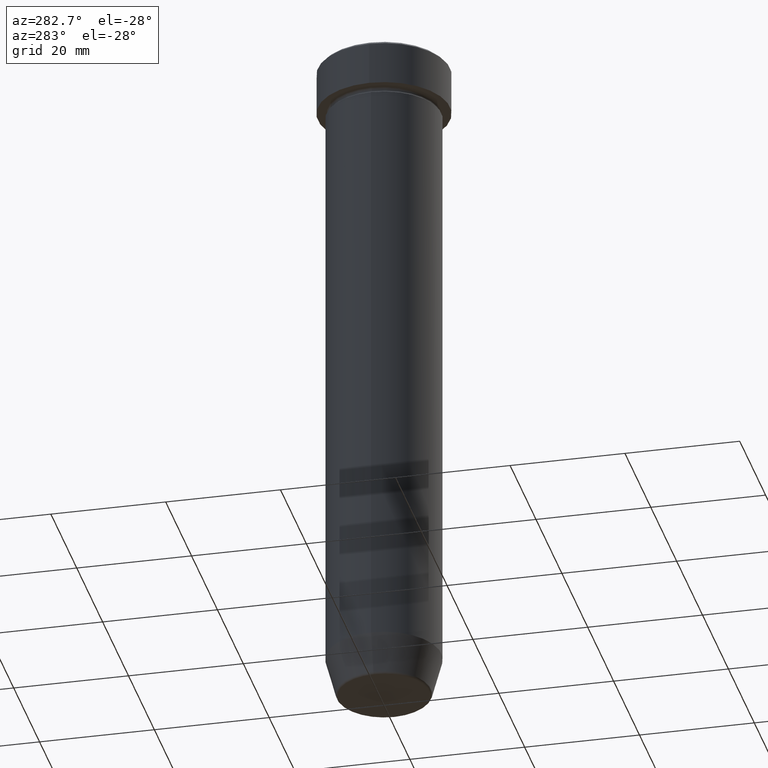
[diagram: clean part render]
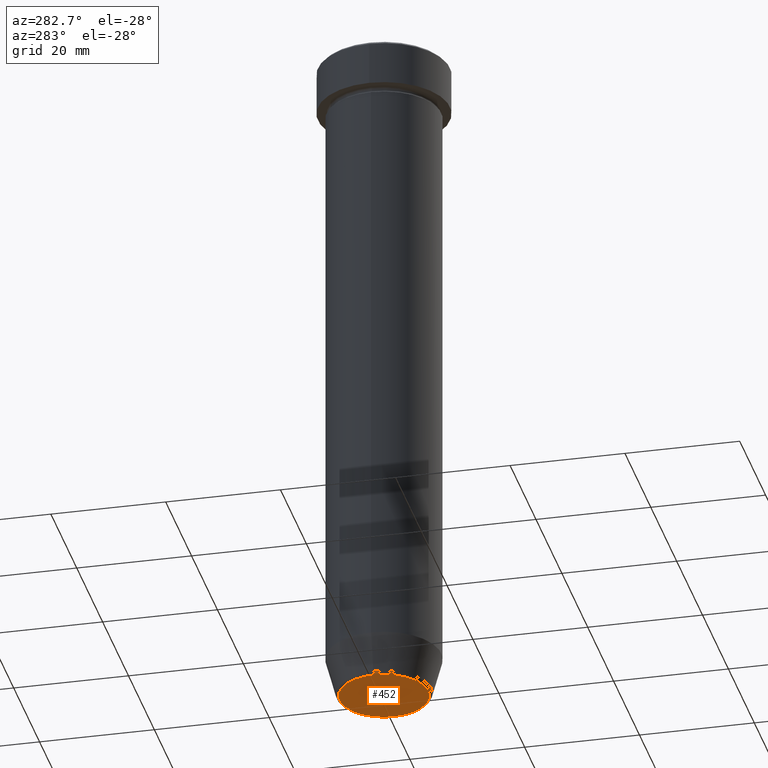
[diagram: same view with one face highlighted and labeled with its STEP entity id]
A machine part, auxiliary view. The second image highlights one B-rep face of the part: STEP entity #452.
In plain terms, the highlighted planar face has unit normal (0, -0, 1).
Its self-contained STEP definition (entity closure, byte-faithful):
#19 = DIRECTION ( 'NONE',  ( 1.000000000000000000, 0.000000000000000000, 0.000000000000000000 ) ) ;
#58 = DIRECTION ( 'NONE',  ( 0.000000000000000000, -0.000000000000000000, 1.000000000000000000 ) ) ;
#91 = CIRCLE ( 'NONE', #226, 7.740692158992650285 ) ;
#92 = ORIENTED_EDGE ( 'NONE', *, *, #243, .T. ) ;
#120 = AXIS2_PLACEMENT_3D ( 'NONE', #460, #58, #201 ) ;
#150 = CIRCLE ( 'NONE', #446, 7.740692158992650285 ) ;
#156 = VERTEX_POINT ( 'NONE', #167 ) ;
#167 = CARTESIAN_POINT ( 'NONE',  ( -7.740692158992650285, 9.775343368540031246E-16, -120.0000000000000000 ) ) ;
#171 = DIRECTION ( 'NONE',  ( 1.000000000000000000, 0.000000000000000000, 0.000000000000000000 ) ) ;
#201 = DIRECTION ( 'NONE',  ( 1.000000000000000000, 0.000000000000000000, 0.000000000000000000 ) ) ;
#226 = AXIS2_PLACEMENT_3D ( 'NONE', #557, #421, #19 ) ;
#243 = EDGE_CURVE ( 'NONE', #461, #156, #150, .T. ) ;
#285 = FACE_OUTER_BOUND ( 'NONE', #410, .T. ) ;
#304 = DIRECTION ( 'NONE',  ( 0.000000000000000000, 0.000000000000000000, -1.000000000000000000 ) ) ;
#376 = CARTESIAN_POINT ( 'NONE',  ( 7.740692158992650285, 0.000000000000000000, -120.0000000000000000 ) ) ;
#410 = EDGE_LOOP ( 'NONE', ( #92, #504 ) ) ;
#421 = DIRECTION ( 'NONE',  ( 0.000000000000000000, 0.000000000000000000, -1.000000000000000000 ) ) ;
#446 = AXIS2_PLACEMENT_3D ( 'NONE', #467, #304, #171 ) ;
#452 = ADVANCED_FACE ( 'NONE', ( #285 ), #566, .F. ) ;
#460 = CARTESIAN_POINT ( 'NONE',  ( 0.000000000000000000, 8.572527594031472993E-15, -120.0000000000000000 ) ) ;
#461 = VERTEX_POINT ( 'NONE', #376 ) ;
#462 = EDGE_CURVE ( 'NONE', #156, #461, #91, .T. ) ;
#467 = CARTESIAN_POINT ( 'NONE',  ( 0.000000000000000000, 0.000000000000000000, -120.0000000000000000 ) ) ;
#504 = ORIENTED_EDGE ( 'NONE', *, *, #462, .T. ) ;
#557 = CARTESIAN_POINT ( 'NONE',  ( 0.000000000000000000, 0.000000000000000000, -120.0000000000000000 ) ) ;
#566 = PLANE ( 'NONE',  #120 ) ;